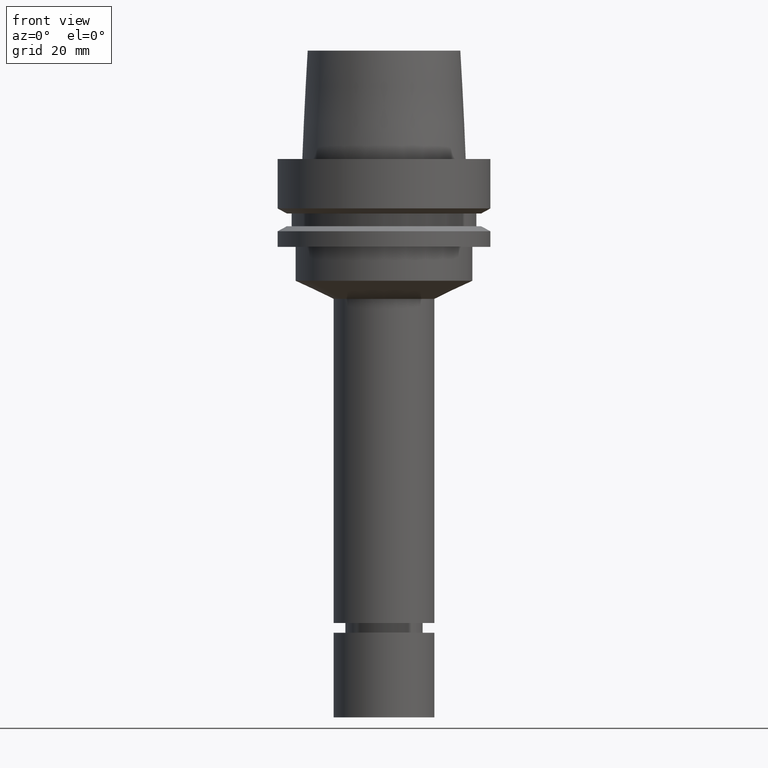
[diagram: clean part render]
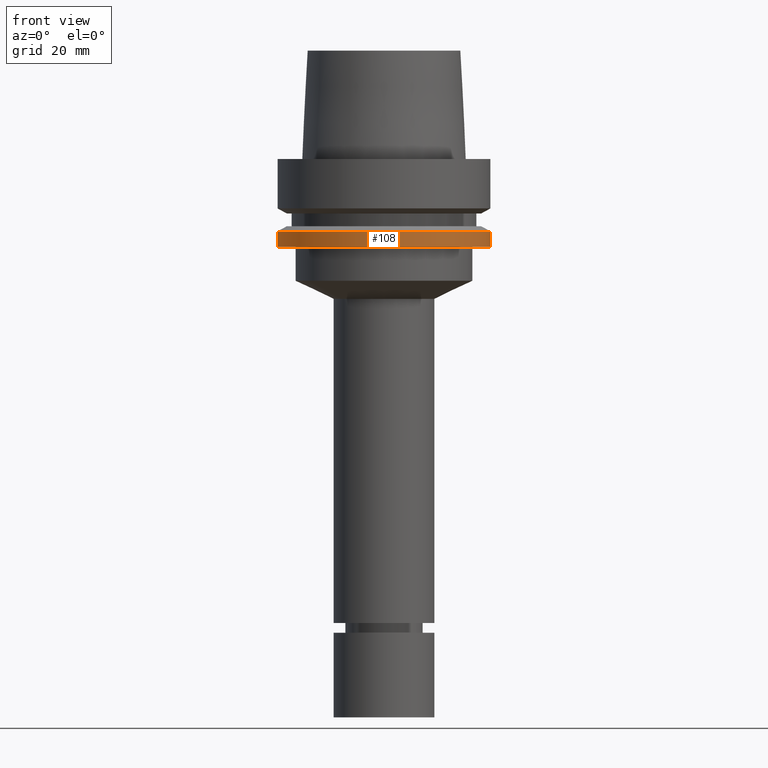
[diagram: same view with one face highlighted and labeled with its STEP entity id]
A machine part, front view. The second image highlights one B-rep face of the part: STEP entity #108.
In plain terms, the highlighted cylindrical surface (bore or boss wall) has radius 31.5 mm, axis along (-0, -0, 1).
Its self-contained STEP definition (entity closure, byte-faithful):
#108=ADVANCED_FACE('Unnamed[1]',(#260,#261),#262,.T.);
#130=EDGE_CURVE('Unnamed[1]',#295,#295,#296,.T.);
#137=EDGE_CURVE('Unnamed[1]',#306,#306,#307,.T.);
#260=FACE_BOUND('',#461,.T.);
#261=FACE_BOUND('',#462,.T.);
#262=CYLINDRICAL_SURFACE('',#463,31.4999999999999);
#295=VERTEX_POINT('',#505);
#296=CIRCLE('',#506,31.4999999999998);
#306=VERTEX_POINT('',#519);
#307=CIRCLE('',#520,31.5);
#461=EDGE_LOOP('',(#680));
#462=EDGE_LOOP('',(#681));
#463=AXIS2_PLACEMENT_3D('',#682,#683,#684);
#505=CARTESIAN_POINT('',(1.59204083889155E-015,31.4999999999998,-25.9999999999999));
#506=AXIS2_PLACEMENT_3D('',#720,#721,#722);
#519=CARTESIAN_POINT('',(1.30899429078397E-015,31.5,-21.3774990747592));
#520=AXIS2_PLACEMENT_3D('',#732,#733,#734);
#680=ORIENTED_EDGE('',*,*,#137,.F.);
#681=ORIENTED_EDGE('',*,*,#130,.T.);
#682=CARTESIAN_POINT('',(1.45051756483776E-015,2.90103512967552E-015,-23.6887495373796));
#683=DIRECTION('',(-6.12323399573677E-017,-1.22464679914735E-016,1.0));
#684=DIRECTION('',(-1.23259516440783E-032,1.0,1.22464679914735E-016));
#720=CARTESIAN_POINT('',(1.59204083889155E-015,3.1840816777831E-015,-25.9999999999999));
#721=DIRECTION('',(-6.12323399573676E-017,-1.22464679914735E-016,1.0));
#722=DIRECTION('',(-1.23259516440783E-032,1.0,1.22464679914735E-016));
#732=CARTESIAN_POINT('',(1.30899429078397E-015,2.61798858156794E-015,-21.3774990747592));
#733=DIRECTION('',(-6.12323399573677E-017,-1.22464679914735E-016,1.0));
#734=DIRECTION('',(-1.23259516440783E-032,1.0,1.22464679914735E-016));